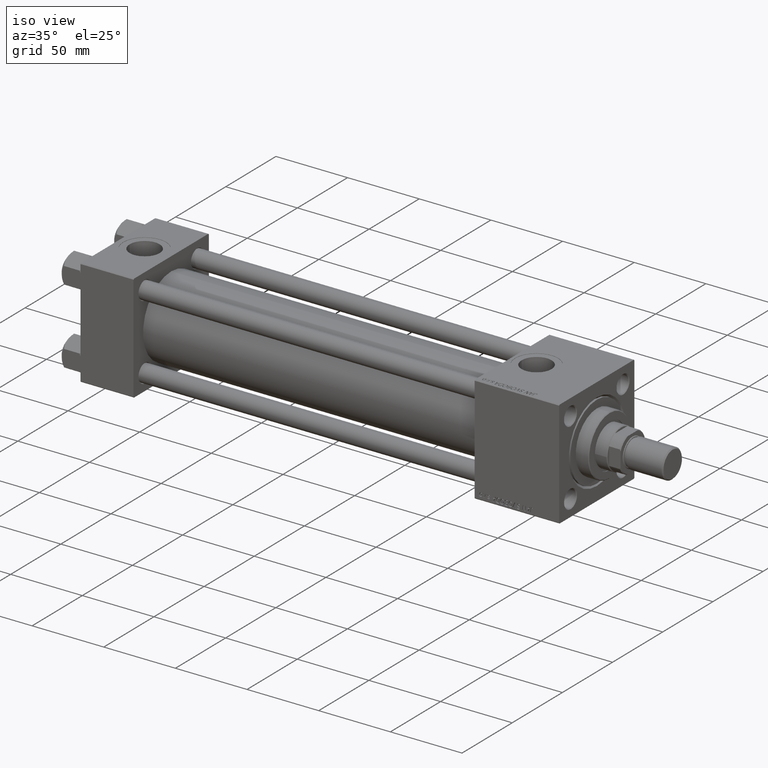
[diagram: clean part render]
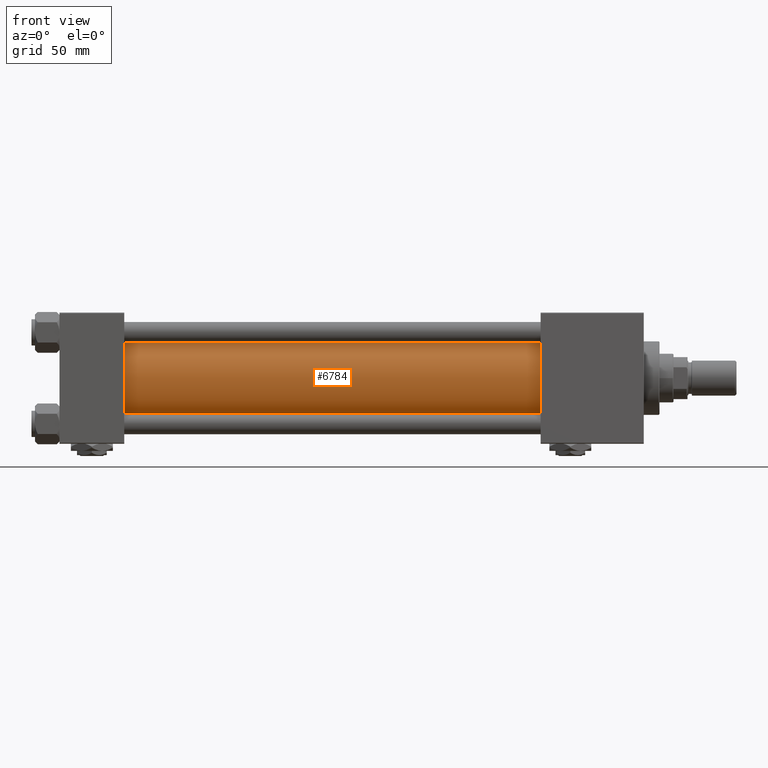
[diagram: tour spotlight — one face highlighted and labeled with its STEP entity id]
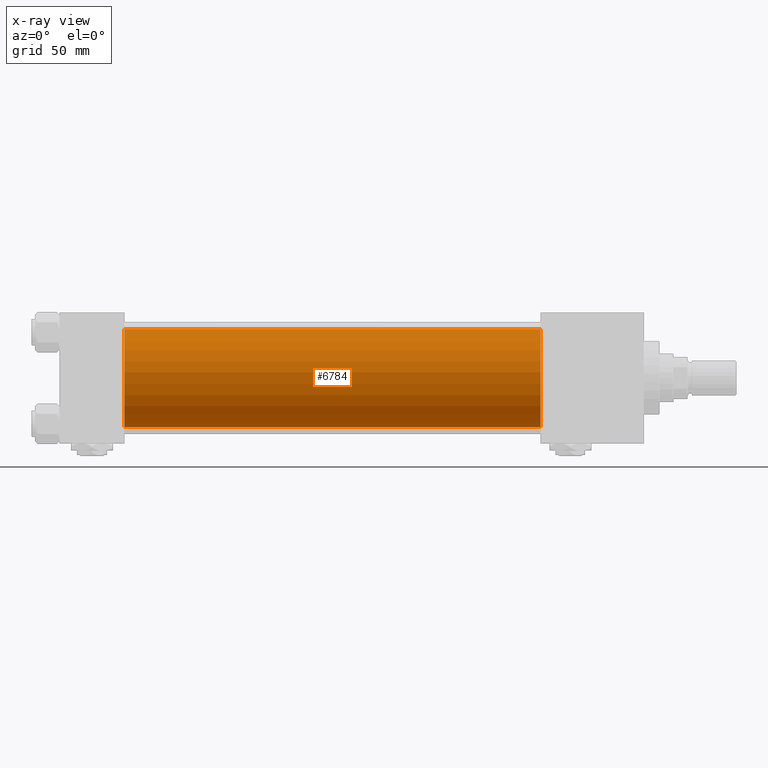
[diagram: x-ray of the same camera — body ghosted, this tour face saturated]
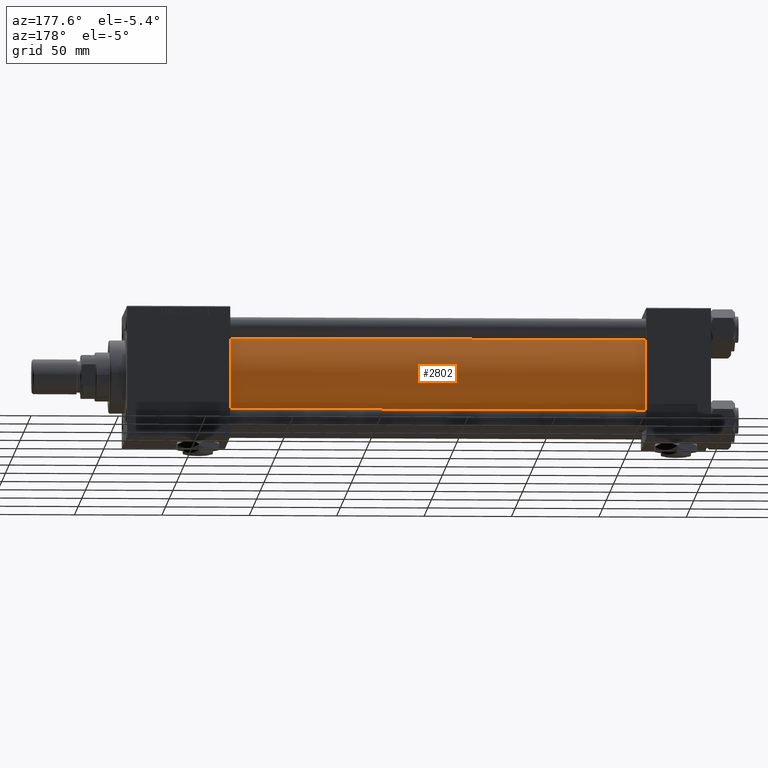
[diagram: tour spotlight — one face highlighted and labeled with its STEP entity id]
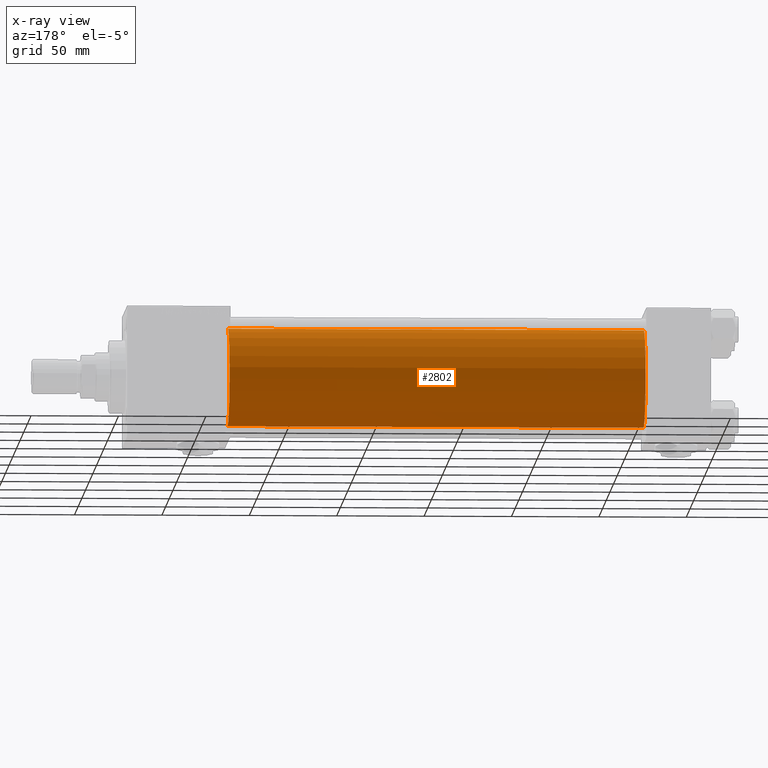
[diagram: x-ray of the same camera — body ghosted, this tour face saturated]
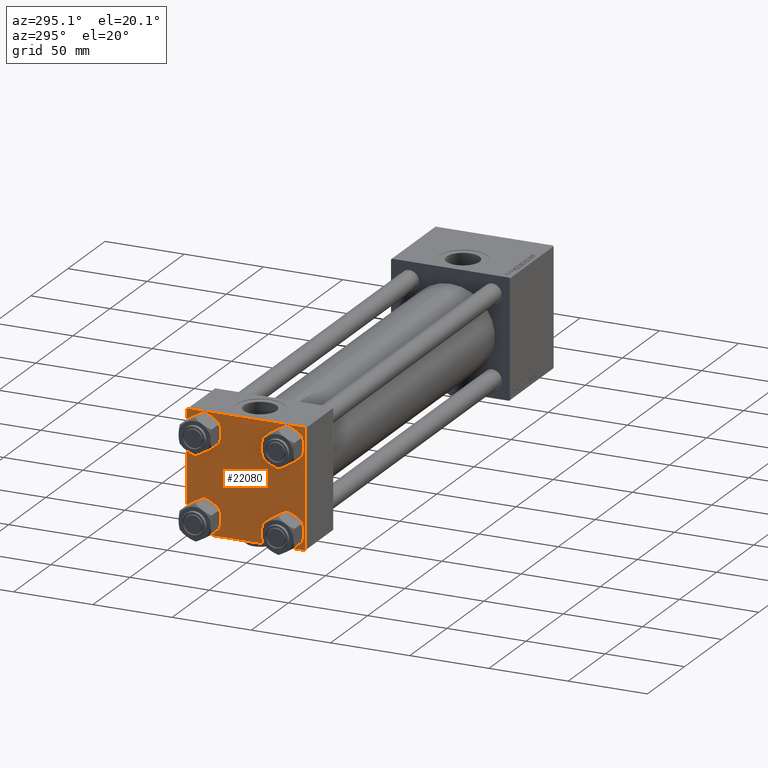
[diagram: tour spotlight — one face highlighted and labeled with its STEP entity id]
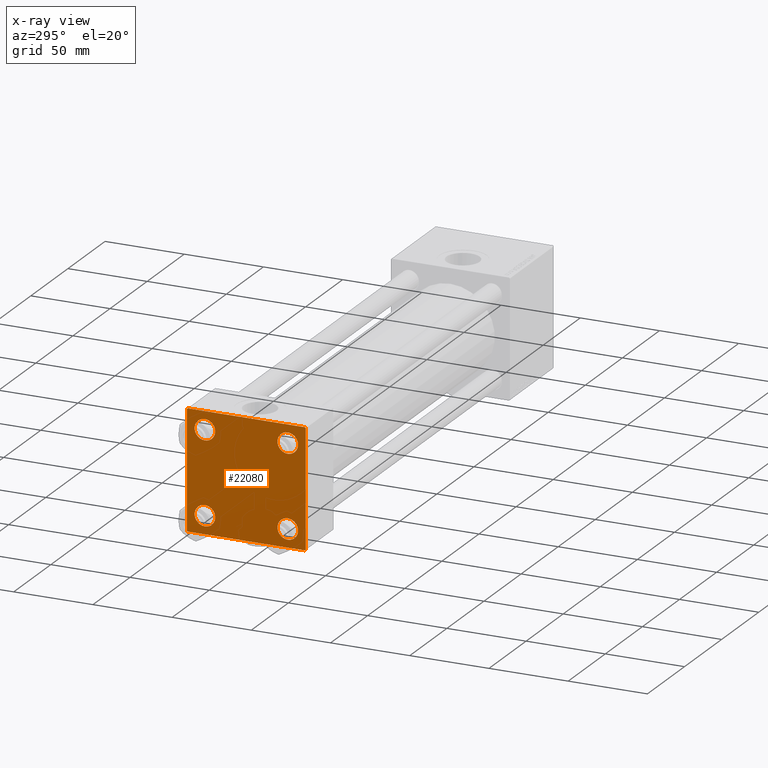
[diagram: x-ray of the same camera — body ghosted, this tour face saturated]
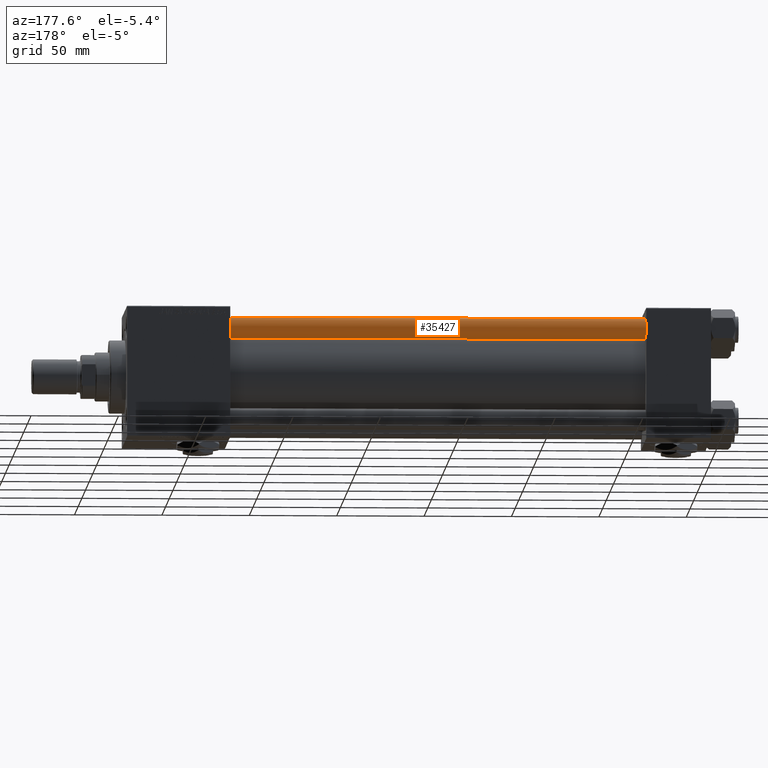
[diagram: tour spotlight — one face highlighted and labeled with its STEP entity id]
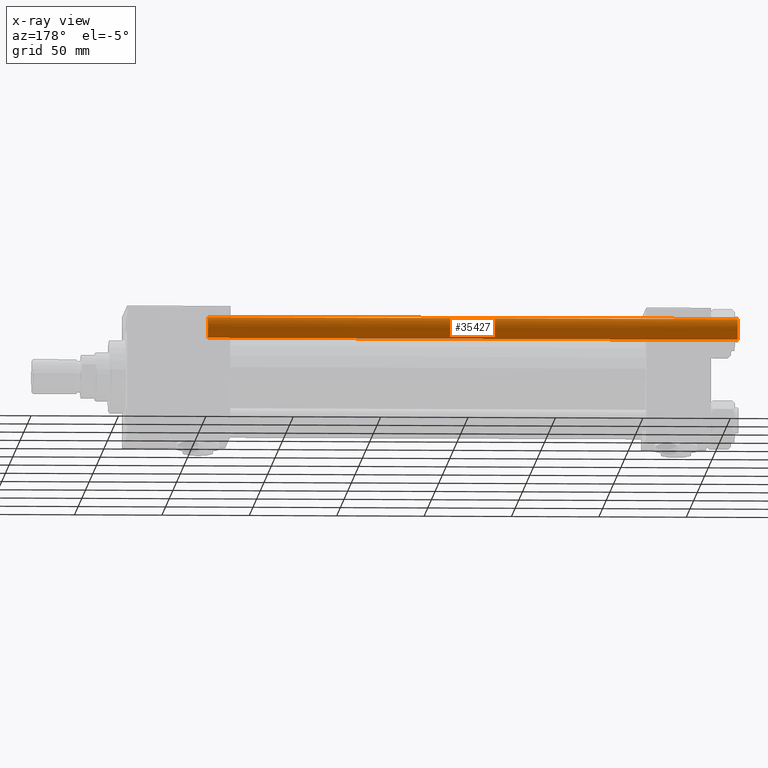
[diagram: x-ray of the same camera — body ghosted, this tour face saturated]
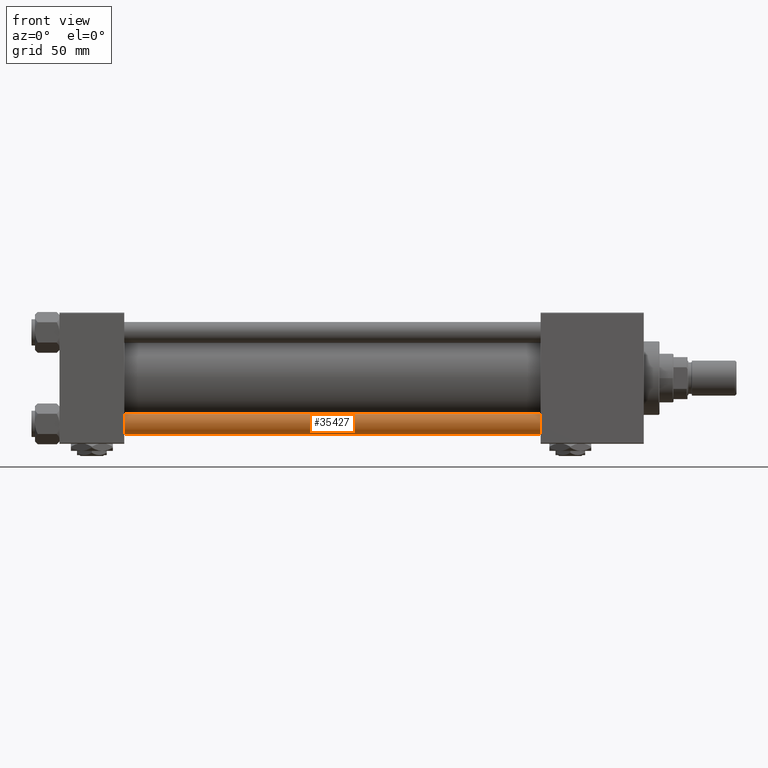
[diagram: tour spotlight — one face highlighted and labeled with its STEP entity id]
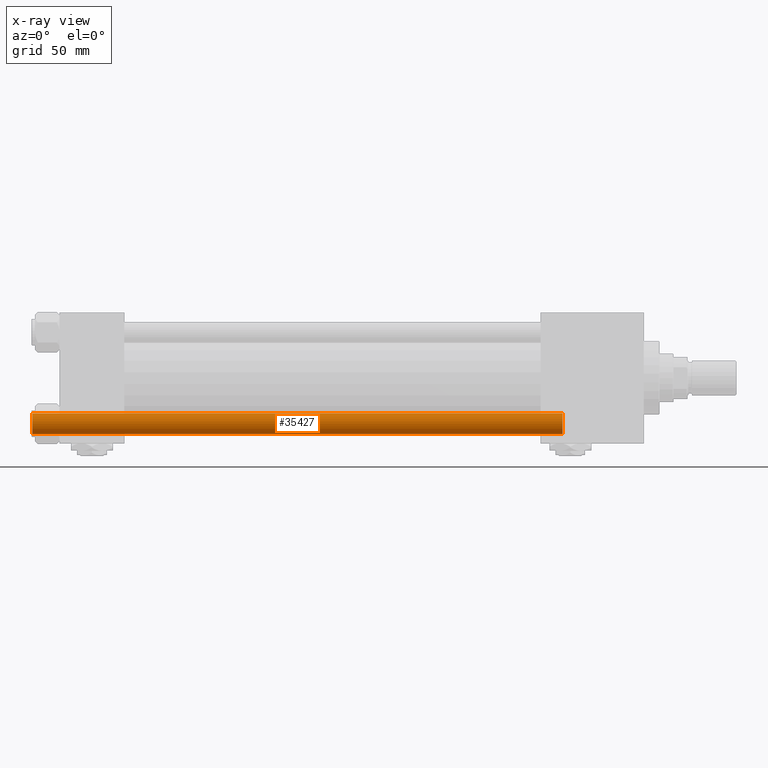
[diagram: x-ray of the same camera — body ghosted, this tour face saturated]
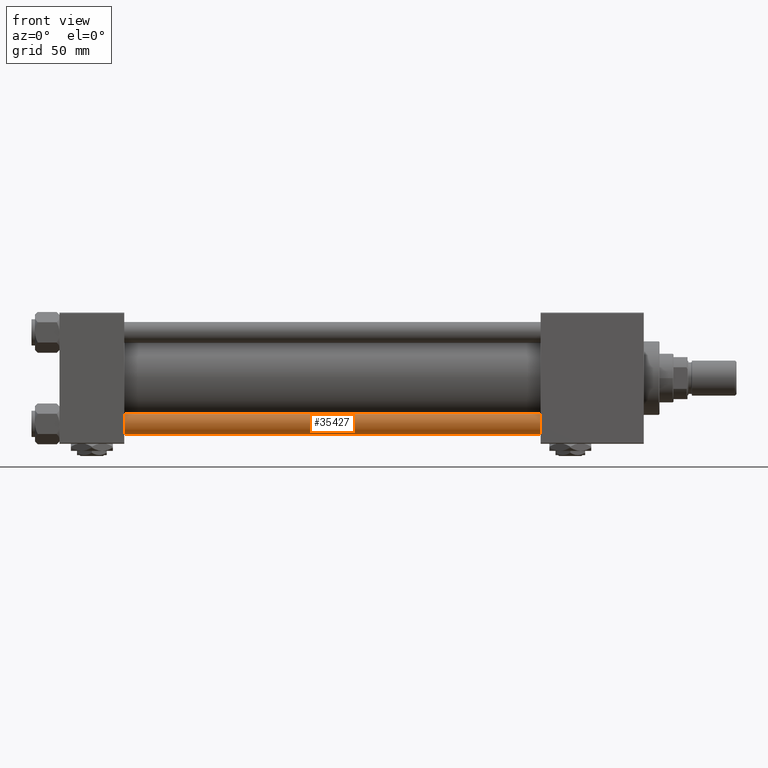
[diagram: tour spotlight — one face highlighted and labeled with its STEP entity id]
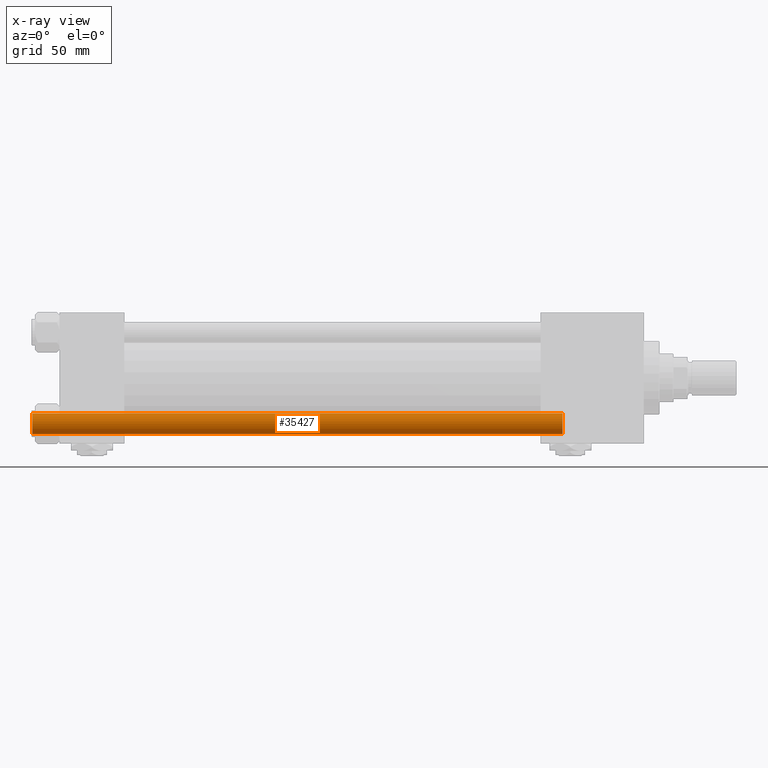
[diagram: x-ray of the same camera — body ghosted, this tour face saturated]
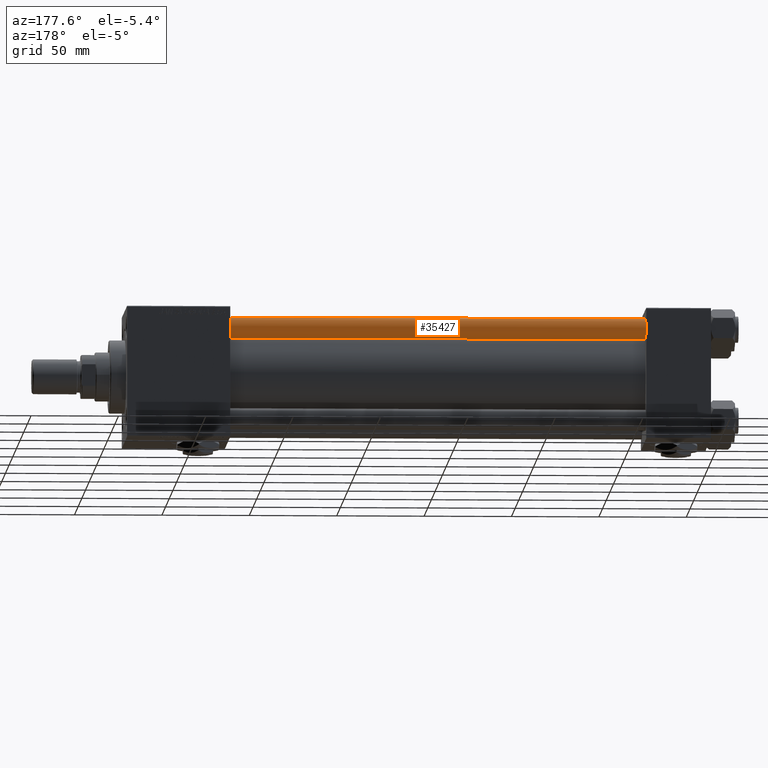
[diagram: tour spotlight — one face highlighted and labeled with its STEP entity id]
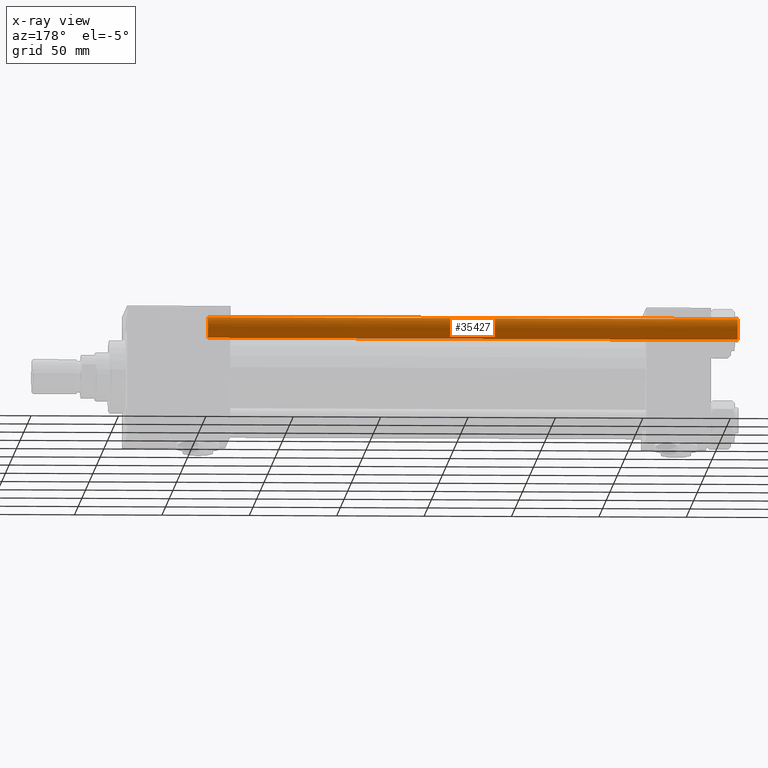
[diagram: x-ray of the same camera — body ghosted, this tour face saturated]
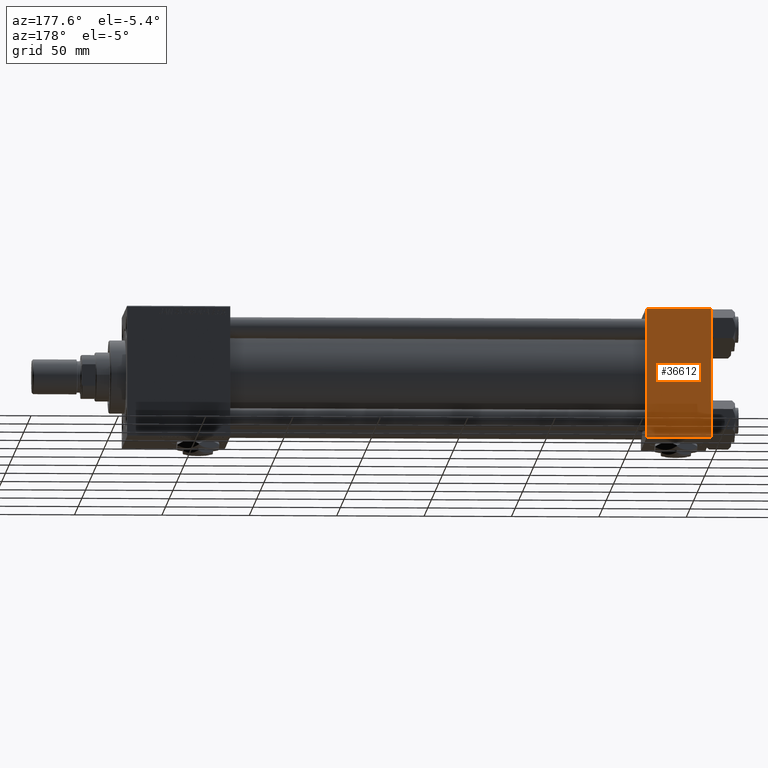
[diagram: tour spotlight — one face highlighted and labeled with its STEP entity id]
A machine part: a face-by-face anatomy tour. The part has 1263 B-rep faces; the first image is the clean iso view, then the 8 largest visible faces are spotlighted one at a time (largest first), each with its STEP entity span.

Face 1 — front view, entity #6784. An x-ray twin of the same camera follows (body ghosted, this face saturated) — the face is partly hidden behind the body. In plain terms, the highlighted cylindrical surface (partial cylindrical patch) has radius 28 mm, axis along (-1, -0, -0).
Definition (entity closure, byte-faithful):
#856 = ORIENTED_EDGE ( 'NONE', *, *, #5095, .F. ) ;
#1011 = DIRECTION ( 'NONE',  ( -1.000000000000000000, -0.000000000000000000, -0.000000000000000000 ) ) ;
#3584 = DIRECTION ( 'NONE',  ( 1.000000000000000000, -0.000000000000000000, 0.000000000000000000 ) ) ;
#3606 = CARTESIAN_POINT ( 'NONE',  ( 274.9999999999999432, 8.269258236473784371E-16, -28.00000000000000000 ) ) ;
#5095 = EDGE_CURVE ( 'NONE', #11796, #41624, #11328, .T. ) ;
#6784 = ADVANCED_FACE ( 'NONE', ( #10168 ), #13410, .T. ) ;
#8112 = ORIENTED_EDGE ( 'NONE', *, *, #26820, .T. ) ;
#8423 = EDGE_LOOP ( 'NONE', ( #19188, #856, #8112, #32125 ) ) ;
#10168 = FACE_OUTER_BOUND ( 'NONE', #8423, .T. ) ;
#11328 = CIRCLE ( 'NONE', #30078, 28.00000000000000000 ) ;
#11661 = DIRECTION ( 'NONE',  ( -1.000000000000000000, -0.000000000000000000, -0.000000000000000000 ) ) ;
#11796 = VERTEX_POINT ( 'NONE', #34955 ) ;
#11855 = CIRCLE ( 'NONE', #20389, 28.00000000000000000 ) ;
#12487 = CARTESIAN_POINT ( 'NONE',  ( 37.00000000000000711, 8.269258236473784371E-16, -28.00000000000000000 ) ) ;
#13410 = CYLINDRICAL_SURFACE ( 'NONE', #25033, 28.00000000000000000 ) ;
#13913 = DIRECTION ( 'NONE',  ( -1.000000000000000000, -0.000000000000000000, -0.000000000000000000 ) ) ;
#17398 = DIRECTION ( 'NONE',  ( 0.000000000000000000, 0.000000000000000000, 1.000000000000000000 ) ) ;
#19188 = ORIENTED_EDGE ( 'NONE', *, *, #34273, .F. ) ;
#19729 = VERTEX_POINT ( 'NONE', #12487 ) ;
#20389 = AXIS2_PLACEMENT_3D ( 'NONE', #52078, #3584, #52597 ) ;
#20466 = CARTESIAN_POINT ( 'NONE',  ( 37.00000000000000711, -2.602085213965210642E-15, 28.00000000000000000 ) ) ;
#21298 = LINE ( 'NONE', #37519, #28828 ) ;
#25033 = AXIS2_PLACEMENT_3D ( 'NONE', #34407, #13913, #17398 ) ;
#25775 = DIRECTION ( 'NONE',  ( 0.000000000000000000, 0.000000000000000000, -1.000000000000000000 ) ) ;
#26820 = EDGE_CURVE ( 'NONE', #11796, #30716, #27124, .T. ) ;
#27124 = LINE ( 'NONE', #43888, #29449 ) ;
#28828 = VECTOR ( 'NONE', #1011, 1000.000000000000000 ) ;
#29449 = VECTOR ( 'NONE', #11661, 1000.000000000000000 ) ;
#30078 = AXIS2_PLACEMENT_3D ( 'NONE', #46771, #47032, #25775 ) ;
#30716 = VERTEX_POINT ( 'NONE', #20466 ) ;
#32125 = ORIENTED_EDGE ( 'NONE', *, *, #35775, .T. ) ;
#34273 = EDGE_CURVE ( 'NONE', #41624, #19729, #21298, .T. ) ;
#34407 = CARTESIAN_POINT ( 'NONE',  ( 274.9999999999999432, -2.602085213965210642E-15, 0.000000000000000000 ) ) ;
#34955 = CARTESIAN_POINT ( 'NONE',  ( 274.9999999999999432, -2.602085213965210642E-15, 28.00000000000000000 ) ) ;
#35775 = EDGE_CURVE ( 'NONE', #30716, #19729, #11855, .T. ) ;
#37519 = CARTESIAN_POINT ( 'NONE',  ( 274.9999999999999432, 8.269258236473784371E-16, -28.00000000000000000 ) ) ;
#41624 = VERTEX_POINT ( 'NONE', #3606 ) ;
#43888 = CARTESIAN_POINT ( 'NONE',  ( 274.9999999999999432, -2.602085213965210642E-15, 28.00000000000000000 ) ) ;
#46771 = CARTESIAN_POINT ( 'NONE',  ( 274.9999999999999432, -2.602085213965210642E-15, 0.000000000000000000 ) ) ;
#47032 = DIRECTION ( 'NONE',  ( 1.000000000000000000, 0.000000000000000000, 0.000000000000000000 ) ) ;
#52078 = CARTESIAN_POINT ( 'NONE',  ( 37.00000000000000711, -2.602085213965210642E-15, 0.000000000000000000 ) ) ;
#52597 = DIRECTION ( 'NONE',  ( 0.000000000000000000, 0.000000000000000000, 1.000000000000000000 ) ) ;

Face 2 — auxiliary view, entity #2802. An x-ray twin of the same camera follows (body ghosted, this face saturated) — the face is partly hidden behind the body. In plain terms, the highlighted cylindrical surface (partial cylindrical patch) has radius 28 mm, axis along (-1, -0, -0).
Definition (entity closure, byte-faithful):
#1011 = DIRECTION ( 'NONE',  ( -1.000000000000000000, -0.000000000000000000, -0.000000000000000000 ) ) ;
#1930 = ORIENTED_EDGE ( 'NONE', *, *, #26820, .F. ) ;
#2802 = ADVANCED_FACE ( 'NONE', ( #20503 ), #37254, .T. ) ;
#3606 = CARTESIAN_POINT ( 'NONE',  ( 274.9999999999999432, 8.269258236473784371E-16, -28.00000000000000000 ) ) ;
#3607 = CARTESIAN_POINT ( 'NONE',  ( 274.9999999999999432, -2.602085213965210642E-15, 0.000000000000000000 ) ) ;
#6624 = DIRECTION ( 'NONE',  ( 1.000000000000000000, -0.000000000000000000, 0.000000000000000000 ) ) ;
#11661 = DIRECTION ( 'NONE',  ( -1.000000000000000000, -0.000000000000000000, -0.000000000000000000 ) ) ;
#11796 = VERTEX_POINT ( 'NONE', #34955 ) ;
#12487 = CARTESIAN_POINT ( 'NONE',  ( 37.00000000000000711, 8.269258236473784371E-16, -28.00000000000000000 ) ) ;
#12508 = DIRECTION ( 'NONE',  ( 0.000000000000000000, 0.000000000000000000, 1.000000000000000000 ) ) ;
#14350 = CARTESIAN_POINT ( 'NONE',  ( 37.00000000000000711, -2.602085213965210642E-15, 0.000000000000000000 ) ) ;
#15099 = EDGE_CURVE ( 'NONE', #19729, #30716, #21507, .T. ) ;
#19729 = VERTEX_POINT ( 'NONE', #12487 ) ;
#19774 = AXIS2_PLACEMENT_3D ( 'NONE', #48988, #36729, #12508 ) ;
#20466 = CARTESIAN_POINT ( 'NONE',  ( 37.00000000000000711, -2.602085213965210642E-15, 28.00000000000000000 ) ) ;
#20503 = FACE_OUTER_BOUND ( 'NONE', #46626, .T. ) ;
#20945 = CIRCLE ( 'NONE', #45558, 28.00000000000000000 ) ;
#21298 = LINE ( 'NONE', #37519, #28828 ) ;
#21507 = CIRCLE ( 'NONE', #39306, 28.00000000000000000 ) ;
#22893 = DIRECTION ( 'NONE',  ( 0.000000000000000000, 0.000000000000000000, 1.000000000000000000 ) ) ;
#22924 = EDGE_CURVE ( 'NONE', #41624, #11796, #20945, .T. ) ;
#25595 = ORIENTED_EDGE ( 'NONE', *, *, #22924, .F. ) ;
#26820 = EDGE_CURVE ( 'NONE', #11796, #30716, #27124, .T. ) ;
#27124 = LINE ( 'NONE', #43888, #29449 ) ;
#28828 = VECTOR ( 'NONE', #1011, 1000.000000000000000 ) ;
#29449 = VECTOR ( 'NONE', #11661, 1000.000000000000000 ) ;
#30716 = VERTEX_POINT ( 'NONE', #20466 ) ;
#32117 = DIRECTION ( 'NONE',  ( 1.000000000000000000, 0.000000000000000000, 0.000000000000000000 ) ) ;
#34273 = EDGE_CURVE ( 'NONE', #41624, #19729, #21298, .T. ) ;
#34955 = CARTESIAN_POINT ( 'NONE',  ( 274.9999999999999432, -2.602085213965210642E-15, 28.00000000000000000 ) ) ;
#36729 = DIRECTION ( 'NONE',  ( -1.000000000000000000, -0.000000000000000000, -0.000000000000000000 ) ) ;
#37254 = CYLINDRICAL_SURFACE ( 'NONE', #19774, 28.00000000000000000 ) ;
#37283 = ORIENTED_EDGE ( 'NONE', *, *, #15099, .T. ) ;
#37519 = CARTESIAN_POINT ( 'NONE',  ( 274.9999999999999432, 8.269258236473784371E-16, -28.00000000000000000 ) ) ;
#39306 = AXIS2_PLACEMENT_3D ( 'NONE', #14350, #6624, #22893 ) ;
#41624 = VERTEX_POINT ( 'NONE', #3606 ) ;
#43888 = CARTESIAN_POINT ( 'NONE',  ( 274.9999999999999432, -2.602085213965210642E-15, 28.00000000000000000 ) ) ;
#45558 = AXIS2_PLACEMENT_3D ( 'NONE', #3607, #32117, #51843 ) ;
#46626 = EDGE_LOOP ( 'NONE', ( #25595, #52219, #37283, #1930 ) ) ;
#48988 = CARTESIAN_POINT ( 'NONE',  ( 274.9999999999999432, -2.602085213965210642E-15, 0.000000000000000000 ) ) ;
#51843 = DIRECTION ( 'NONE',  ( 0.000000000000000000, 0.000000000000000000, -1.000000000000000000 ) ) ;
#52219 = ORIENTED_EDGE ( 'NONE', *, *, #34273, .T. ) ;

Face 3 — auxiliary view, entity #22080. An x-ray twin of the same camera follows (body ghosted, this face saturated) — the face is partly hidden behind the body. In plain terms, the highlighted planar face has unit normal (-1, 0, 0).
Definition (entity closure, byte-faithful):
#573 = ORIENTED_EDGE ( 'NONE', *, *, #40640, .T. ) ;
#1085 = CIRCLE ( 'NONE', #25808, 6.500000000000023093 ) ;
#1099 = DIRECTION ( 'NONE',  ( 0.000000000000000000, 0.000000000000000000, 1.000000000000000000 ) ) ;
#1149 = CARTESIAN_POINT ( 'NONE',  ( 0.000000000000000000, 26.14999999999999858, -32.65000000000001990 ) ) ;
#1166 = VERTEX_POINT ( 'NONE', #14229 ) ;
#1398 = ORIENTED_EDGE ( 'NONE', *, *, #16328, .T. ) ;
#1687 = EDGE_LOOP ( 'NONE', ( #47931, #13172, #17449, #22737, #43113, #50721, #45065, #16178 ) ) ;
#1723 = CARTESIAN_POINT ( 'NONE',  ( 0.000000000000000000, -26.14999999999999147, 19.64999999999999147 ) ) ;
#1970 = DIRECTION ( 'NONE',  ( 1.000000000000000000, -0.000000000000000000, 0.000000000000000000 ) ) ;
#2261 = AXIS2_PLACEMENT_3D ( 'NONE', #17752, #26274, #50243 ) ;
#2394 = VERTEX_POINT ( 'NONE', #24294 ) ;
#2482 = EDGE_CURVE ( 'NONE', #7938, #47043, #32279, .T. ) ;
#2969 = DIRECTION ( 'NONE',  ( 0.000000000000000000, -1.000000000000000000, -9.251858538542971581E-17 ) ) ;
#3285 = ORIENTED_EDGE ( 'NONE', *, *, #23249, .T. ) ;
#3381 = ORIENTED_EDGE ( 'NONE', *, *, #45966, .T. ) ;
#4322 = DIRECTION ( 'NONE',  ( 0.000000000000000000, 9.251858538542971581E-17, -1.000000000000000000 ) ) ;
#4412 = VECTOR ( 'NONE', #2969, 1000.000000000000000 ) ;
#5485 = ORIENTED_EDGE ( 'NONE', *, *, #37454, .T. ) ;
#5578 = AXIS2_PLACEMENT_3D ( 'NONE', #35779, #52295, #6481 ) ;
#5700 = DIRECTION ( 'NONE',  ( -1.000000000000000000, 0.000000000000000000, -0.000000000000000000 ) ) ;
#6481 = DIRECTION ( 'NONE',  ( 0.000000000000000000, 0.000000000000000000, 1.000000000000000000 ) ) ;
#7938 = VERTEX_POINT ( 'NONE', #18961 ) ;
#8144 = CARTESIAN_POINT ( 'NONE',  ( 0.000000000000000000, -37.50000000000000711, 36.99999999999999289 ) ) ;
#8692 = VERTEX_POINT ( 'NONE', #37914 ) ;
#9057 = LINE ( 'NONE', #25320, #29706 ) ;
#9178 = AXIS2_PLACEMENT_3D ( 'NONE', #11686, #32457, #27934 ) ;
#9898 = DIRECTION ( 'NONE',  ( 0.000000000000000000, -0.7071067811865524577, 0.7071067811865426878 ) ) ;
#9955 = DIRECTION ( 'NONE',  ( -0.000000000000000000, 0.000000000000000000, 1.000000000000000000 ) ) ;
#10044 = DIRECTION ( 'NONE',  ( 0.000000000000000000, 0.000000000000000000, 1.000000000000000000 ) ) ;
#10364 = VECTOR ( 'NONE', #51782, 1000.000000000000114 ) ;
#11686 = CARTESIAN_POINT ( 'NONE',  ( 0.000000000000000000, 26.14999999999999858, -26.15000000000000213 ) ) ;
#11690 = EDGE_CURVE ( 'NONE', #44333, #1166, #47156, .T. ) ;
#11841 = EDGE_CURVE ( 'NONE', #8692, #2394, #41206, .T. ) ;
#13017 = VERTEX_POINT ( 'NONE', #31140 ) ;
#13172 = ORIENTED_EDGE ( 'NONE', *, *, #13771, .T. ) ;
#13448 = ORIENTED_EDGE ( 'NONE', *, *, #43089, .T. ) ;
#13771 = EDGE_CURVE ( 'NONE', #46436, #13017, #23286, .T. ) ;
#14132 = VERTEX_POINT ( 'NONE', #36506 ) ;
#14159 = DIRECTION ( 'NONE',  ( -0.000000000000000000, 0.7071067811865474617, 0.7071067811865474617 ) ) ;
#14229 = CARTESIAN_POINT ( 'NONE',  ( 0.000000000000000000, 26.14999999999999858, 19.64999999999998437 ) ) ;
#14936 = CIRCLE ( 'NONE', #5578, 6.500000000000015987 ) ;
#15066 = CARTESIAN_POINT ( 'NONE',  ( 0.000000000000000000, -26.14999999999999147, -26.15000000000000924 ) ) ;
#16178 = ORIENTED_EDGE ( 'NONE', *, *, #37775, .T. ) ;
#16328 = EDGE_CURVE ( 'NONE', #1166, #44333, #1085, .T. ) ;
#16445 = VERTEX_POINT ( 'NONE', #43599 ) ;
#17440 = FACE_BOUND ( 'NONE', #35017, .T. ) ;
#17449 = ORIENTED_EDGE ( 'NONE', *, *, #40521, .T. ) ;
#17752 = CARTESIAN_POINT ( 'NONE',  ( 0.000000000000000000, -26.14999999999999147, -26.15000000000000924 ) ) ;
#18649 = EDGE_LOOP ( 'NONE', ( #32862, #1398 ) ) ;
#18812 = DIRECTION ( 'NONE',  ( 1.000000000000000000, -0.000000000000000000, 0.000000000000000000 ) ) ;
#18961 = CARTESIAN_POINT ( 'NONE',  ( 0.000000000000000000, 36.99999999999999289, 37.50000000000000000 ) ) ;
#18964 = LINE ( 'NONE', #32486, #31395 ) ;
#19945 = CARTESIAN_POINT ( 'NONE',  ( 0.000000000000000000, -26.14999999999999147, 32.65000000000003411 ) ) ;
#20008 = VERTEX_POINT ( 'NONE', #8144 ) ;
#20683 = CARTESIAN_POINT ( 'NONE',  ( 0.000000000000000000, 37.49999999999999289, -36.99999999999998579 ) ) ;
#21286 = CARTESIAN_POINT ( 'NONE',  ( 0.000000000000000000, 37.49999999999999289, -37.50000000000000000 ) ) ;
#21899 = DIRECTION ( 'NONE',  ( 1.000000000000000000, -0.000000000000000000, 0.000000000000000000 ) ) ;
#22055 = CIRCLE ( 'NONE', #43276, 6.500000000000023093 ) ;
#22080 = ADVANCED_FACE ( 'NONE', ( #42195, #37941, #17440, #26224, #34450 ), #42450, .T. ) ;
#22737 = ORIENTED_EDGE ( 'NONE', *, *, #38429, .T. ) ;
#22765 = LINE ( 'NONE', #21286, #32317 ) ;
#23246 = DIRECTION ( 'NONE',  ( 0.000000000000000000, 0.000000000000000000, -1.000000000000000000 ) ) ;
#23249 = EDGE_CURVE ( 'NONE', #25981, #16445, #14936, .T. ) ;
#23286 = LINE ( 'NONE', #35516, #10364 ) ;
#24281 = AXIS2_PLACEMENT_3D ( 'NONE', #50974, #5700, #9955 ) ;
#24294 = CARTESIAN_POINT ( 'NONE',  ( 0.000000000000000000, -26.14999999999999147, -19.64999999999999503 ) ) ;
#24472 = CIRCLE ( 'NONE', #9178, 6.500000000000015987 ) ;
#25320 = CARTESIAN_POINT ( 'NONE',  ( 0.000000000000000000, 37.24999999999999289, 37.24999999999999289 ) ) ;
#25804 = CARTESIAN_POINT ( 'NONE',  ( 0.000000000000000000, 26.14999999999999858, 26.15000000000000213 ) ) ;
#25808 = AXIS2_PLACEMENT_3D ( 'NONE', #25804, #38291, #10044 ) ;
#25841 = DIRECTION ( 'NONE',  ( 0.000000000000000000, 0.7071067811865474617, -0.7071067811865474617 ) ) ;
#25918 = LINE ( 'NONE', #50655, #27035 ) ;
#25981 = VERTEX_POINT ( 'NONE', #1149 ) ;
#26224 = FACE_BOUND ( 'NONE', #18649, .T. ) ;
#26274 = DIRECTION ( 'NONE',  ( 1.000000000000000000, -0.000000000000000000, 0.000000000000000000 ) ) ;
#27035 = VECTOR ( 'NONE', #14159, 1000.000000000000114 ) ;
#27073 = EDGE_CURVE ( 'NONE', #20008, #28354, #29623, .T. ) ;
#27819 = CIRCLE ( 'NONE', #2261, 6.500000000000015987 ) ;
#27934 = DIRECTION ( 'NONE',  ( 0.000000000000000000, 0.000000000000000000, 1.000000000000000000 ) ) ;
#27982 = VECTOR ( 'NONE', #9898, 1000.000000000000000 ) ;
#28155 = EDGE_LOOP ( 'NONE', ( #5485, #573 ) ) ;
#28354 = VERTEX_POINT ( 'NONE', #32022 ) ;
#29623 = LINE ( 'NONE', #45067, #38758 ) ;
#29706 = VECTOR ( 'NONE', #25841, 1000.000000000000114 ) ;
#30427 = CARTESIAN_POINT ( 'NONE',  ( 0.000000000000000000, -37.00000000000000711, 37.49999999999999289 ) ) ;
#31140 = CARTESIAN_POINT ( 'NONE',  ( 0.000000000000000000, 36.99999999999997868, -37.50000000000000000 ) ) ;
#31270 = VERTEX_POINT ( 'NONE', #36291 ) ;
#31395 = VECTOR ( 'NONE', #23246, 1000.000000000000000 ) ;
#31847 = EDGE_LOOP ( 'NONE', ( #13448, #52388 ) ) ;
#32022 = CARTESIAN_POINT ( 'NONE',  ( 0.000000000000000000, -37.50000000000000000, -37.00000000000003553 ) ) ;
#32130 = EDGE_CURVE ( 'NONE', #20008, #47043, #25918, .T. ) ;
#32279 = LINE ( 'NONE', #39992, #4412 ) ;
#32317 = VECTOR ( 'NONE', #51000, 1000.000000000000000 ) ;
#32457 = DIRECTION ( 'NONE',  ( 1.000000000000000000, -0.000000000000000000, 0.000000000000000000 ) ) ;
#32486 = CARTESIAN_POINT ( 'NONE',  ( 0.000000000000000000, 37.49999999999999289, 37.50000000000000000 ) ) ;
#32862 = ORIENTED_EDGE ( 'NONE', *, *, #11690, .T. ) ;
#33152 = CIRCLE ( 'NONE', #39940, 6.500000000000023093 ) ;
#33619 = VERTEX_POINT ( 'NONE', #1723 ) ;
#34394 = CARTESIAN_POINT ( 'NONE',  ( 0.000000000000000000, -37.24999999999975842, -37.25000000000027001 ) ) ;
#34450 = FACE_OUTER_BOUND ( 'NONE', #1687, .T. ) ;
#34728 = DIRECTION ( 'NONE',  ( 0.000000000000000000, 0.000000000000000000, 1.000000000000000000 ) ) ;
#35017 = EDGE_LOOP ( 'NONE', ( #3381, #3285 ) ) ;
#35024 = DIRECTION ( 'NONE',  ( 0.000000000000000000, 0.000000000000000000, 1.000000000000000000 ) ) ;
#35516 = CARTESIAN_POINT ( 'NONE',  ( 0.000000000000000000, 37.24999999999998579, -37.24999999999998579 ) ) ;
#35779 = CARTESIAN_POINT ( 'NONE',  ( 0.000000000000000000, 26.14999999999999858, -26.15000000000000213 ) ) ;
#36291 = CARTESIAN_POINT ( 'NONE',  ( 0.000000000000000000, -37.00000000000002132, -37.50000000000000711 ) ) ;
#36506 = CARTESIAN_POINT ( 'NONE',  ( 0.000000000000000000, 37.49999999999999289, 37.00000000000000000 ) ) ;
#36544 = DIRECTION ( 'NONE',  ( 1.000000000000000000, -0.000000000000000000, 0.000000000000000000 ) ) ;
#36626 = CARTESIAN_POINT ( 'NONE',  ( 0.000000000000000000, 26.14999999999999858, 32.65000000000002700 ) ) ;
#37243 = CARTESIAN_POINT ( 'NONE',  ( 0.000000000000000000, -26.14999999999999147, 26.15000000000000924 ) ) ;
#37454 = EDGE_CURVE ( 'NONE', #46006, #33619, #22055, .T. ) ;
#37607 = CARTESIAN_POINT ( 'NONE',  ( 0.000000000000000000, -26.14999999999999147, 26.15000000000000924 ) ) ;
#37775 = EDGE_CURVE ( 'NONE', #7938, #14132, #9057, .T. ) ;
#37914 = CARTESIAN_POINT ( 'NONE',  ( 0.000000000000000000, -26.14999999999999147, -32.65000000000002700 ) ) ;
#37941 = FACE_BOUND ( 'NONE', #31847, .T. ) ;
#38291 = DIRECTION ( 'NONE',  ( 1.000000000000000000, -0.000000000000000000, 0.000000000000000000 ) ) ;
#38429 = EDGE_CURVE ( 'NONE', #31270, #28354, #46394, .T. ) ;
#38758 = VECTOR ( 'NONE', #4322, 1000.000000000000000 ) ;
#39940 = AXIS2_PLACEMENT_3D ( 'NONE', #37243, #1970, #34728 ) ;
#39992 = CARTESIAN_POINT ( 'NONE',  ( 0.000000000000000000, 37.49999999999999289, 37.50000000000000000 ) ) ;
#40521 = EDGE_CURVE ( 'NONE', #13017, #31270, #22765, .T. ) ;
#40640 = EDGE_CURVE ( 'NONE', #33619, #46006, #33152, .T. ) ;
#41206 = CIRCLE ( 'NONE', #42890, 6.500000000000015987 ) ;
#42195 = FACE_BOUND ( 'NONE', #28155, .T. ) ;
#42450 = PLANE ( 'NONE',  #24281 ) ;
#42890 = AXIS2_PLACEMENT_3D ( 'NONE', #15066, #36544, #35024 ) ;
#43089 = EDGE_CURVE ( 'NONE', #2394, #8692, #27819, .T. ) ;
#43113 = ORIENTED_EDGE ( 'NONE', *, *, #27073, .F. ) ;
#43276 = AXIS2_PLACEMENT_3D ( 'NONE', #37607, #21899, #1099 ) ;
#43599 = CARTESIAN_POINT ( 'NONE',  ( 0.000000000000000000, 26.14999999999999858, -19.64999999999998792 ) ) ;
#43852 = CARTESIAN_POINT ( 'NONE',  ( 0.000000000000000000, 26.14999999999999858, 26.15000000000000213 ) ) ;
#44333 = VERTEX_POINT ( 'NONE', #36626 ) ;
#45065 = ORIENTED_EDGE ( 'NONE', *, *, #2482, .F. ) ;
#45067 = CARTESIAN_POINT ( 'NONE',  ( 0.000000000000000000, -37.50000000000000711, 37.49999999999999289 ) ) ;
#45966 = EDGE_CURVE ( 'NONE', #16445, #25981, #24472, .T. ) ;
#46006 = VERTEX_POINT ( 'NONE', #19945 ) ;
#46295 = AXIS2_PLACEMENT_3D ( 'NONE', #43852, #18812, #51321 ) ;
#46394 = LINE ( 'NONE', #34394, #27982 ) ;
#46436 = VERTEX_POINT ( 'NONE', #20683 ) ;
#47043 = VERTEX_POINT ( 'NONE', #30427 ) ;
#47156 = CIRCLE ( 'NONE', #46295, 6.500000000000023093 ) ;
#47931 = ORIENTED_EDGE ( 'NONE', *, *, #49264, .T. ) ;
#49264 = EDGE_CURVE ( 'NONE', #14132, #46436, #18964, .T. ) ;
#50243 = DIRECTION ( 'NONE',  ( 0.000000000000000000, 0.000000000000000000, 1.000000000000000000 ) ) ;
#50655 = CARTESIAN_POINT ( 'NONE',  ( -0.000000000000000000, -37.25000000000000000, 37.25000000000000000 ) ) ;
#50721 = ORIENTED_EDGE ( 'NONE', *, *, #32130, .T. ) ;
#50974 = CARTESIAN_POINT ( 'NONE',  ( 0.000000000000000000, 0.000000000000000000, 0.000000000000000000 ) ) ;
#51000 = DIRECTION ( 'NONE',  ( 0.000000000000000000, -1.000000000000000000, -9.251858538542972814E-17 ) ) ;
#51321 = DIRECTION ( 'NONE',  ( 0.000000000000000000, 0.000000000000000000, 1.000000000000000000 ) ) ;
#51782 = DIRECTION ( 'NONE',  ( -0.000000000000000000, -0.7071067811865474617, -0.7071067811865474617 ) ) ;
#52295 = DIRECTION ( 'NONE',  ( 1.000000000000000000, -0.000000000000000000, 0.000000000000000000 ) ) ;
#52388 = ORIENTED_EDGE ( 'NONE', *, *, #11841, .T. ) ;

Face 4 — auxiliary view, entity #35427. An x-ray twin of the same camera follows (body ghosted, this face saturated) — the face is partly hidden behind the body. In plain terms, the highlighted cylindrical surface (edge-blend (fillet) strip) has radius 6 mm, axis along (1, -0, 0).
Definition (entity closure, byte-faithful):
#111 = CARTESIAN_POINT ( 'NONE',  ( 6.000000000000000888, 7.347880794884120722E-16, 0.4999999999999449329 ) ) ;
#490 = CARTESIAN_POINT ( 'NONE',  ( -6.000000000000000888, 0.000000000000000000, 0.4999999999999449329 ) ) ;
#815 = AXIS2_PLACEMENT_3D ( 'NONE', #35621, #51891, #22591 ) ;
#4665 = DIRECTION ( 'NONE',  ( 1.000000000000000000, 0.000000000000000000, 0.000000000000000000 ) ) ;
#4716 = ORIENTED_EDGE ( 'NONE', *, *, #12772, .T. ) ;
#6197 = CARTESIAN_POINT ( 'NONE',  ( 0.000000000000000000, 0.000000000000000000, 0.4999999999999449329 ) ) ;
#6548 = CARTESIAN_POINT ( 'NONE',  ( 6.000000000000000888, 7.347880794884120722E-16, 304.0000000000000000 ) ) ;
#8128 = DIRECTION ( 'NONE',  ( 0.000000000000000000, 0.000000000000000000, -1.000000000000000000 ) ) ;
#8548 = CARTESIAN_POINT ( 'NONE',  ( 6.000000000000000888, 7.347880794884120722E-16, 303.5000000000000000 ) ) ;
#12033 = CIRCLE ( 'NONE', #28233, 6.000000000000000888 ) ;
#12772 = EDGE_CURVE ( 'NONE', #37065, #49339, #12033, .T. ) ;
#14203 = VERTEX_POINT ( 'NONE', #8548 ) ;
#21082 = CARTESIAN_POINT ( 'NONE',  ( -6.000000000000000888, 0.000000000000000000, 303.5000000000000000 ) ) ;
#22591 = DIRECTION ( 'NONE',  ( -1.000000000000000000, 0.000000000000000000, 0.000000000000000000 ) ) ;
#22852 = CYLINDRICAL_SURFACE ( 'NONE', #815, 6.000000000000000888 ) ;
#24314 = VERTEX_POINT ( 'NONE', #21082 ) ;
#25189 = CARTESIAN_POINT ( 'NONE',  ( 0.000000000000000000, 0.000000000000000000, 303.5000000000000000 ) ) ;
#26161 = VECTOR ( 'NONE', #48352, 1000.000000000000000 ) ;
#26994 = CIRCLE ( 'NONE', #43991, 6.000000000000000888 ) ;
#27751 = ORIENTED_EDGE ( 'NONE', *, *, #45413, .T. ) ;
#28122 = LINE ( 'NONE', #52352, #26161 ) ;
#28233 = AXIS2_PLACEMENT_3D ( 'NONE', #6197, #45925, #30212 ) ;
#28384 = DIRECTION ( 'NONE',  ( -0.000000000000000000, -0.000000000000000000, -1.000000000000000000 ) ) ;
#30212 = DIRECTION ( 'NONE',  ( 1.000000000000000000, 0.000000000000000000, 0.000000000000000000 ) ) ;
#30912 = EDGE_CURVE ( 'NONE', #24314, #14203, #26994, .T. ) ;
#30922 = EDGE_CURVE ( 'NONE', #24314, #49339, #28122, .T. ) ;
#35427 = ADVANCED_FACE ( 'NONE', ( #43614 ), #22852, .T. ) ;
#35621 = CARTESIAN_POINT ( 'NONE',  ( 0.000000000000000000, 0.000000000000000000, 304.0000000000000000 ) ) ;
#37065 = VERTEX_POINT ( 'NONE', #111 ) ;
#40602 = VECTOR ( 'NONE', #28384, 1000.000000000000000 ) ;
#42550 = ORIENTED_EDGE ( 'NONE', *, *, #30912, .T. ) ;
#43039 = LINE ( 'NONE', #6548, #40602 ) ;
#43614 = FACE_OUTER_BOUND ( 'NONE', #52240, .T. ) ;
#43991 = AXIS2_PLACEMENT_3D ( 'NONE', #25189, #8128, #4665 ) ;
#45413 = EDGE_CURVE ( 'NONE', #14203, #37065, #43039, .T. ) ;
#45925 = DIRECTION ( 'NONE',  ( -0.000000000000000000, -0.000000000000000000, 1.000000000000000000 ) ) ;
#48352 = DIRECTION ( 'NONE',  ( -0.000000000000000000, -0.000000000000000000, -1.000000000000000000 ) ) ;
#48786 = ORIENTED_EDGE ( 'NONE', *, *, #30922, .F. ) ;
#49339 = VERTEX_POINT ( 'NONE', #490 ) ;
#51891 = DIRECTION ( 'NONE',  ( -0.000000000000000000, -0.000000000000000000, -1.000000000000000000 ) ) ;
#52240 = EDGE_LOOP ( 'NONE', ( #42550, #27751, #4716, #48786 ) ) ;
#52352 = CARTESIAN_POINT ( 'NONE',  ( -6.000000000000000888, 0.000000000000000000, 304.0000000000000000 ) ) ;

Face 5 — front view, entity #35427. An x-ray twin of the same camera follows (body ghosted, this face saturated) — the face is partly hidden behind the body. In plain terms, the highlighted cylindrical surface (edge-blend (fillet) strip) has radius 6 mm, axis along (1, 0, -0).
Definition (entity closure, byte-faithful):
#111 = CARTESIAN_POINT ( 'NONE',  ( 6.000000000000000888, 7.347880794884120722E-16, 0.4999999999999449329 ) ) ;
#490 = CARTESIAN_POINT ( 'NONE',  ( -6.000000000000000888, 0.000000000000000000, 0.4999999999999449329 ) ) ;
#815 = AXIS2_PLACEMENT_3D ( 'NONE', #35621, #51891, #22591 ) ;
#4665 = DIRECTION ( 'NONE',  ( 1.000000000000000000, 0.000000000000000000, 0.000000000000000000 ) ) ;
#4716 = ORIENTED_EDGE ( 'NONE', *, *, #12772, .T. ) ;
#6197 = CARTESIAN_POINT ( 'NONE',  ( 0.000000000000000000, 0.000000000000000000, 0.4999999999999449329 ) ) ;
#6548 = CARTESIAN_POINT ( 'NONE',  ( 6.000000000000000888, 7.347880794884120722E-16, 304.0000000000000000 ) ) ;
#8128 = DIRECTION ( 'NONE',  ( 0.000000000000000000, 0.000000000000000000, -1.000000000000000000 ) ) ;
#8548 = CARTESIAN_POINT ( 'NONE',  ( 6.000000000000000888, 7.347880794884120722E-16, 303.5000000000000000 ) ) ;
#12033 = CIRCLE ( 'NONE', #28233, 6.000000000000000888 ) ;
#12772 = EDGE_CURVE ( 'NONE', #37065, #49339, #12033, .T. ) ;
#14203 = VERTEX_POINT ( 'NONE', #8548 ) ;
#21082 = CARTESIAN_POINT ( 'NONE',  ( -6.000000000000000888, 0.000000000000000000, 303.5000000000000000 ) ) ;
#22591 = DIRECTION ( 'NONE',  ( -1.000000000000000000, 0.000000000000000000, 0.000000000000000000 ) ) ;
#22852 = CYLINDRICAL_SURFACE ( 'NONE', #815, 6.000000000000000888 ) ;
#24314 = VERTEX_POINT ( 'NONE', #21082 ) ;
#25189 = CARTESIAN_POINT ( 'NONE',  ( 0.000000000000000000, 0.000000000000000000, 303.5000000000000000 ) ) ;
#26161 = VECTOR ( 'NONE', #48352, 1000.000000000000000 ) ;
#26994 = CIRCLE ( 'NONE', #43991, 6.000000000000000888 ) ;
#27751 = ORIENTED_EDGE ( 'NONE', *, *, #45413, .T. ) ;
#28122 = LINE ( 'NONE', #52352, #26161 ) ;
#28233 = AXIS2_PLACEMENT_3D ( 'NONE', #6197, #45925, #30212 ) ;
#28384 = DIRECTION ( 'NONE',  ( -0.000000000000000000, -0.000000000000000000, -1.000000000000000000 ) ) ;
#30212 = DIRECTION ( 'NONE',  ( 1.000000000000000000, 0.000000000000000000, 0.000000000000000000 ) ) ;
#30912 = EDGE_CURVE ( 'NONE', #24314, #14203, #26994, .T. ) ;
#30922 = EDGE_CURVE ( 'NONE', #24314, #49339, #28122, .T. ) ;
#35427 = ADVANCED_FACE ( 'NONE', ( #43614 ), #22852, .T. ) ;
#35621 = CARTESIAN_POINT ( 'NONE',  ( 0.000000000000000000, 0.000000000000000000, 304.0000000000000000 ) ) ;
#37065 = VERTEX_POINT ( 'NONE', #111 ) ;
#40602 = VECTOR ( 'NONE', #28384, 1000.000000000000000 ) ;
#42550 = ORIENTED_EDGE ( 'NONE', *, *, #30912, .T. ) ;
#43039 = LINE ( 'NONE', #6548, #40602 ) ;
#43614 = FACE_OUTER_BOUND ( 'NONE', #52240, .T. ) ;
#43991 = AXIS2_PLACEMENT_3D ( 'NONE', #25189, #8128, #4665 ) ;
#45413 = EDGE_CURVE ( 'NONE', #14203, #37065, #43039, .T. ) ;
#45925 = DIRECTION ( 'NONE',  ( -0.000000000000000000, -0.000000000000000000, 1.000000000000000000 ) ) ;
#48352 = DIRECTION ( 'NONE',  ( -0.000000000000000000, -0.000000000000000000, -1.000000000000000000 ) ) ;
#48786 = ORIENTED_EDGE ( 'NONE', *, *, #30922, .F. ) ;
#49339 = VERTEX_POINT ( 'NONE', #490 ) ;
#51891 = DIRECTION ( 'NONE',  ( -0.000000000000000000, -0.000000000000000000, -1.000000000000000000 ) ) ;
#52240 = EDGE_LOOP ( 'NONE', ( #42550, #27751, #4716, #48786 ) ) ;
#52352 = CARTESIAN_POINT ( 'NONE',  ( -6.000000000000000888, 0.000000000000000000, 304.0000000000000000 ) ) ;

Face 6 — front view, entity #35427. An x-ray twin of the same camera follows (body ghosted, this face saturated) — the face is partly hidden behind the body. In plain terms, the highlighted cylindrical surface (edge-blend (fillet) strip) has radius 6 mm, axis along (-1, -0, -0).
Definition (entity closure, byte-faithful):
#111 = CARTESIAN_POINT ( 'NONE',  ( 6.000000000000000888, 7.347880794884120722E-16, 0.4999999999999449329 ) ) ;
#490 = CARTESIAN_POINT ( 'NONE',  ( -6.000000000000000888, 0.000000000000000000, 0.4999999999999449329 ) ) ;
#815 = AXIS2_PLACEMENT_3D ( 'NONE', #35621, #51891, #22591 ) ;
#4665 = DIRECTION ( 'NONE',  ( 1.000000000000000000, 0.000000000000000000, 0.000000000000000000 ) ) ;
#4716 = ORIENTED_EDGE ( 'NONE', *, *, #12772, .T. ) ;
#6197 = CARTESIAN_POINT ( 'NONE',  ( 0.000000000000000000, 0.000000000000000000, 0.4999999999999449329 ) ) ;
#6548 = CARTESIAN_POINT ( 'NONE',  ( 6.000000000000000888, 7.347880794884120722E-16, 304.0000000000000000 ) ) ;
#8128 = DIRECTION ( 'NONE',  ( 0.000000000000000000, 0.000000000000000000, -1.000000000000000000 ) ) ;
#8548 = CARTESIAN_POINT ( 'NONE',  ( 6.000000000000000888, 7.347880794884120722E-16, 303.5000000000000000 ) ) ;
#12033 = CIRCLE ( 'NONE', #28233, 6.000000000000000888 ) ;
#12772 = EDGE_CURVE ( 'NONE', #37065, #49339, #12033, .T. ) ;
#14203 = VERTEX_POINT ( 'NONE', #8548 ) ;
#21082 = CARTESIAN_POINT ( 'NONE',  ( -6.000000000000000888, 0.000000000000000000, 303.5000000000000000 ) ) ;
#22591 = DIRECTION ( 'NONE',  ( -1.000000000000000000, 0.000000000000000000, 0.000000000000000000 ) ) ;
#22852 = CYLINDRICAL_SURFACE ( 'NONE', #815, 6.000000000000000888 ) ;
#24314 = VERTEX_POINT ( 'NONE', #21082 ) ;
#25189 = CARTESIAN_POINT ( 'NONE',  ( 0.000000000000000000, 0.000000000000000000, 303.5000000000000000 ) ) ;
#26161 = VECTOR ( 'NONE', #48352, 1000.000000000000000 ) ;
#26994 = CIRCLE ( 'NONE', #43991, 6.000000000000000888 ) ;
#27751 = ORIENTED_EDGE ( 'NONE', *, *, #45413, .T. ) ;
#28122 = LINE ( 'NONE', #52352, #26161 ) ;
#28233 = AXIS2_PLACEMENT_3D ( 'NONE', #6197, #45925, #30212 ) ;
#28384 = DIRECTION ( 'NONE',  ( -0.000000000000000000, -0.000000000000000000, -1.000000000000000000 ) ) ;
#30212 = DIRECTION ( 'NONE',  ( 1.000000000000000000, 0.000000000000000000, 0.000000000000000000 ) ) ;
#30912 = EDGE_CURVE ( 'NONE', #24314, #14203, #26994, .T. ) ;
#30922 = EDGE_CURVE ( 'NONE', #24314, #49339, #28122, .T. ) ;
#35427 = ADVANCED_FACE ( 'NONE', ( #43614 ), #22852, .T. ) ;
#35621 = CARTESIAN_POINT ( 'NONE',  ( 0.000000000000000000, 0.000000000000000000, 304.0000000000000000 ) ) ;
#37065 = VERTEX_POINT ( 'NONE', #111 ) ;
#40602 = VECTOR ( 'NONE', #28384, 1000.000000000000000 ) ;
#42550 = ORIENTED_EDGE ( 'NONE', *, *, #30912, .T. ) ;
#43039 = LINE ( 'NONE', #6548, #40602 ) ;
#43614 = FACE_OUTER_BOUND ( 'NONE', #52240, .T. ) ;
#43991 = AXIS2_PLACEMENT_3D ( 'NONE', #25189, #8128, #4665 ) ;
#45413 = EDGE_CURVE ( 'NONE', #14203, #37065, #43039, .T. ) ;
#45925 = DIRECTION ( 'NONE',  ( -0.000000000000000000, -0.000000000000000000, 1.000000000000000000 ) ) ;
#48352 = DIRECTION ( 'NONE',  ( -0.000000000000000000, -0.000000000000000000, -1.000000000000000000 ) ) ;
#48786 = ORIENTED_EDGE ( 'NONE', *, *, #30922, .F. ) ;
#49339 = VERTEX_POINT ( 'NONE', #490 ) ;
#51891 = DIRECTION ( 'NONE',  ( -0.000000000000000000, -0.000000000000000000, -1.000000000000000000 ) ) ;
#52240 = EDGE_LOOP ( 'NONE', ( #42550, #27751, #4716, #48786 ) ) ;
#52352 = CARTESIAN_POINT ( 'NONE',  ( -6.000000000000000888, 0.000000000000000000, 304.0000000000000000 ) ) ;

Face 7 — auxiliary view, entity #35427. An x-ray twin of the same camera follows (body ghosted, this face saturated) — the face is partly hidden behind the body. In plain terms, the highlighted cylindrical surface (edge-blend (fillet) strip) has radius 6 mm, axis along (-1, 0, 0).
Definition (entity closure, byte-faithful):
#111 = CARTESIAN_POINT ( 'NONE',  ( 6.000000000000000888, 7.347880794884120722E-16, 0.4999999999999449329 ) ) ;
#490 = CARTESIAN_POINT ( 'NONE',  ( -6.000000000000000888, 0.000000000000000000, 0.4999999999999449329 ) ) ;
#815 = AXIS2_PLACEMENT_3D ( 'NONE', #35621, #51891, #22591 ) ;
#4665 = DIRECTION ( 'NONE',  ( 1.000000000000000000, 0.000000000000000000, 0.000000000000000000 ) ) ;
#4716 = ORIENTED_EDGE ( 'NONE', *, *, #12772, .T. ) ;
#6197 = CARTESIAN_POINT ( 'NONE',  ( 0.000000000000000000, 0.000000000000000000, 0.4999999999999449329 ) ) ;
#6548 = CARTESIAN_POINT ( 'NONE',  ( 6.000000000000000888, 7.347880794884120722E-16, 304.0000000000000000 ) ) ;
#8128 = DIRECTION ( 'NONE',  ( 0.000000000000000000, 0.000000000000000000, -1.000000000000000000 ) ) ;
#8548 = CARTESIAN_POINT ( 'NONE',  ( 6.000000000000000888, 7.347880794884120722E-16, 303.5000000000000000 ) ) ;
#12033 = CIRCLE ( 'NONE', #28233, 6.000000000000000888 ) ;
#12772 = EDGE_CURVE ( 'NONE', #37065, #49339, #12033, .T. ) ;
#14203 = VERTEX_POINT ( 'NONE', #8548 ) ;
#21082 = CARTESIAN_POINT ( 'NONE',  ( -6.000000000000000888, 0.000000000000000000, 303.5000000000000000 ) ) ;
#22591 = DIRECTION ( 'NONE',  ( -1.000000000000000000, 0.000000000000000000, 0.000000000000000000 ) ) ;
#22852 = CYLINDRICAL_SURFACE ( 'NONE', #815, 6.000000000000000888 ) ;
#24314 = VERTEX_POINT ( 'NONE', #21082 ) ;
#25189 = CARTESIAN_POINT ( 'NONE',  ( 0.000000000000000000, 0.000000000000000000, 303.5000000000000000 ) ) ;
#26161 = VECTOR ( 'NONE', #48352, 1000.000000000000000 ) ;
#26994 = CIRCLE ( 'NONE', #43991, 6.000000000000000888 ) ;
#27751 = ORIENTED_EDGE ( 'NONE', *, *, #45413, .T. ) ;
#28122 = LINE ( 'NONE', #52352, #26161 ) ;
#28233 = AXIS2_PLACEMENT_3D ( 'NONE', #6197, #45925, #30212 ) ;
#28384 = DIRECTION ( 'NONE',  ( -0.000000000000000000, -0.000000000000000000, -1.000000000000000000 ) ) ;
#30212 = DIRECTION ( 'NONE',  ( 1.000000000000000000, 0.000000000000000000, 0.000000000000000000 ) ) ;
#30912 = EDGE_CURVE ( 'NONE', #24314, #14203, #26994, .T. ) ;
#30922 = EDGE_CURVE ( 'NONE', #24314, #49339, #28122, .T. ) ;
#35427 = ADVANCED_FACE ( 'NONE', ( #43614 ), #22852, .T. ) ;
#35621 = CARTESIAN_POINT ( 'NONE',  ( 0.000000000000000000, 0.000000000000000000, 304.0000000000000000 ) ) ;
#37065 = VERTEX_POINT ( 'NONE', #111 ) ;
#40602 = VECTOR ( 'NONE', #28384, 1000.000000000000000 ) ;
#42550 = ORIENTED_EDGE ( 'NONE', *, *, #30912, .T. ) ;
#43039 = LINE ( 'NONE', #6548, #40602 ) ;
#43614 = FACE_OUTER_BOUND ( 'NONE', #52240, .T. ) ;
#43991 = AXIS2_PLACEMENT_3D ( 'NONE', #25189, #8128, #4665 ) ;
#45413 = EDGE_CURVE ( 'NONE', #14203, #37065, #43039, .T. ) ;
#45925 = DIRECTION ( 'NONE',  ( -0.000000000000000000, -0.000000000000000000, 1.000000000000000000 ) ) ;
#48352 = DIRECTION ( 'NONE',  ( -0.000000000000000000, -0.000000000000000000, -1.000000000000000000 ) ) ;
#48786 = ORIENTED_EDGE ( 'NONE', *, *, #30922, .F. ) ;
#49339 = VERTEX_POINT ( 'NONE', #490 ) ;
#51891 = DIRECTION ( 'NONE',  ( -0.000000000000000000, -0.000000000000000000, -1.000000000000000000 ) ) ;
#52240 = EDGE_LOOP ( 'NONE', ( #42550, #27751, #4716, #48786 ) ) ;
#52352 = CARTESIAN_POINT ( 'NONE',  ( -6.000000000000000888, 0.000000000000000000, 304.0000000000000000 ) ) ;

Face 8 — auxiliary view, entity #36612. In plain terms, the highlighted planar face has unit normal (0, 1, 0).
Definition (entity closure, byte-faithful):
#104 = DIRECTION ( 'NONE',  ( 0.000000000000000000, 0.000000000000000000, -1.000000000000000000 ) ) ;
#5073 = ORIENTED_EDGE ( 'NONE', *, *, #7931, .T. ) ;
#5172 = EDGE_LOOP ( 'NONE', ( #22792, #5073, #50424, #37641 ) ) ;
#6330 = PLANE ( 'NONE',  #51053 ) ;
#7509 = DIRECTION ( 'NONE',  ( -1.000000000000000000, 0.000000000000000000, 0.000000000000000000 ) ) ;
#7931 = EDGE_CURVE ( 'NONE', #50778, #46436, #26968, .T. ) ;
#8116 = CARTESIAN_POINT ( 'NONE',  ( 37.00000000000000000, 37.49999999999999289, 37.50000000000000000 ) ) ;
#9668 = VERTEX_POINT ( 'NONE', #27793 ) ;
#10766 = VECTOR ( 'NONE', #104, 1000.000000000000000 ) ;
#13668 = EDGE_CURVE ( 'NONE', #14132, #9668, #15547, .T. ) ;
#14132 = VERTEX_POINT ( 'NONE', #36506 ) ;
#14600 = CARTESIAN_POINT ( 'NONE',  ( 37.00000000000000000, 37.49999999999999289, 37.50000000000000000 ) ) ;
#15547 = LINE ( 'NONE', #52298, #17993 ) ;
#17993 = VECTOR ( 'NONE', #44293, 1000.000000000000000 ) ;
#18270 = VECTOR ( 'NONE', #7509, 1000.000000000000000 ) ;
#18964 = LINE ( 'NONE', #32486, #31395 ) ;
#20683 = CARTESIAN_POINT ( 'NONE',  ( 0.000000000000000000, 37.49999999999999289, -36.99999999999998579 ) ) ;
#22792 = ORIENTED_EDGE ( 'NONE', *, *, #43475, .T. ) ;
#23246 = DIRECTION ( 'NONE',  ( 0.000000000000000000, 0.000000000000000000, -1.000000000000000000 ) ) ;
#26968 = LINE ( 'NONE', #43999, #18270 ) ;
#27793 = CARTESIAN_POINT ( 'NONE',  ( 37.00000000000000000, 37.49999999999999289, 37.00000000000000000 ) ) ;
#30855 = DIRECTION ( 'NONE',  ( -0.000000000000000000, 1.000000000000000000, 0.000000000000000000 ) ) ;
#31395 = VECTOR ( 'NONE', #23246, 1000.000000000000000 ) ;
#32486 = CARTESIAN_POINT ( 'NONE',  ( 0.000000000000000000, 37.49999999999999289, 37.50000000000000000 ) ) ;
#36506 = CARTESIAN_POINT ( 'NONE',  ( 0.000000000000000000, 37.49999999999999289, 37.00000000000000000 ) ) ;
#36612 = ADVANCED_FACE ( 'NONE', ( #51093 ), #6330, .T. ) ;
#36616 = LINE ( 'NONE', #8116, #10766 ) ;
#37641 = ORIENTED_EDGE ( 'NONE', *, *, #13668, .T. ) ;
#43085 = DIRECTION ( 'NONE',  ( 0.000000000000000000, -0.000000000000000000, 1.000000000000000000 ) ) ;
#43475 = EDGE_CURVE ( 'NONE', #9668, #50778, #36616, .T. ) ;
#43999 = CARTESIAN_POINT ( 'NONE',  ( 37.00000000000000000, 37.49999999999999289, -36.99999999999998579 ) ) ;
#44293 = DIRECTION ( 'NONE',  ( 1.000000000000000000, 0.000000000000000000, 0.000000000000000000 ) ) ;
#45957 = CARTESIAN_POINT ( 'NONE',  ( 37.00000000000000000, 37.49999999999999289, -36.99999999999998579 ) ) ;
#46436 = VERTEX_POINT ( 'NONE', #20683 ) ;
#49264 = EDGE_CURVE ( 'NONE', #14132, #46436, #18964, .T. ) ;
#50424 = ORIENTED_EDGE ( 'NONE', *, *, #49264, .F. ) ;
#50778 = VERTEX_POINT ( 'NONE', #45957 ) ;
#51053 = AXIS2_PLACEMENT_3D ( 'NONE', #14600, #30855, #43085 ) ;
#51093 = FACE_OUTER_BOUND ( 'NONE', #5172, .T. ) ;
#52298 = CARTESIAN_POINT ( 'NONE',  ( 37.00000000000000000, 37.49999999999999289, 37.00000000000000000 ) ) ;